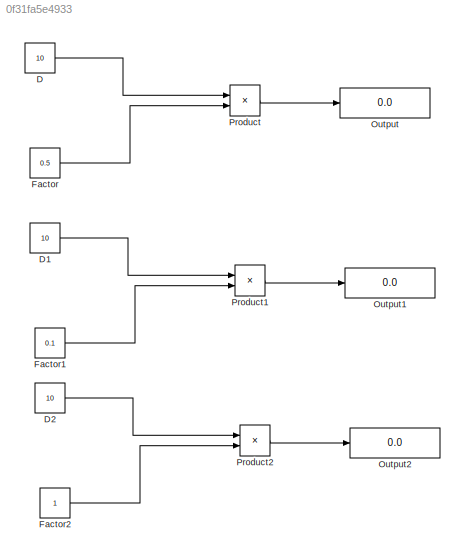
MODEL slx_0f31fa5e4933
KIND model
CONFIG AbsTol = auto
CONFIG EnableMultiTasking = off
CONFIG FixedStep = auto
CONFIG MaxStep = auto
CONFIG MinStep = auto
CONFIG RelTol = 1e-3
CONFIG SampleTimeConstraint = Unconstrained
CONFIG SolverName = VariableStepAuto
CONFIG StartTime = 0.0
CONFIG StopTime = 10.0
BLOCK [Constant] D
  Value = 10
BLOCK [Constant] D1
  Value = 10
BLOCK [Constant] D2
  Value = 10
BLOCK [Constant] Factor
  Value = 0.5
BLOCK [Constant] Factor1
  Value = 0.1
BLOCK [Constant] Factor2
BLOCK [Display] Output
  Decimation = 1
BLOCK [Display] Output1
  Decimation = 1
BLOCK [Display] Output2
  Decimation = 1
BLOCK [Product] Product
BLOCK [Product] Product1
BLOCK [Product] Product2
LINE D1:1 -> Product1:1
LINE D2:1 -> Product2:1
LINE D:1 -> Product:1
LINE Factor1:1 -> Product1:2
LINE Factor2:1 -> Product2:2
LINE Factor:1 -> Product:2
LINE Product1:1 -> Output1:1
LINE Product2:1 -> Output2:1
LINE Product:1 -> Output:1
